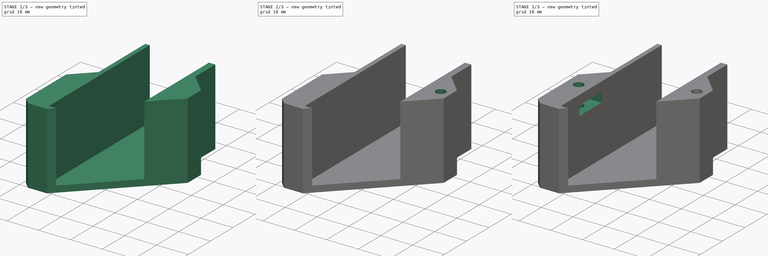
[diagram: build sequence overview — one tinted view per stage of 3, left to right]
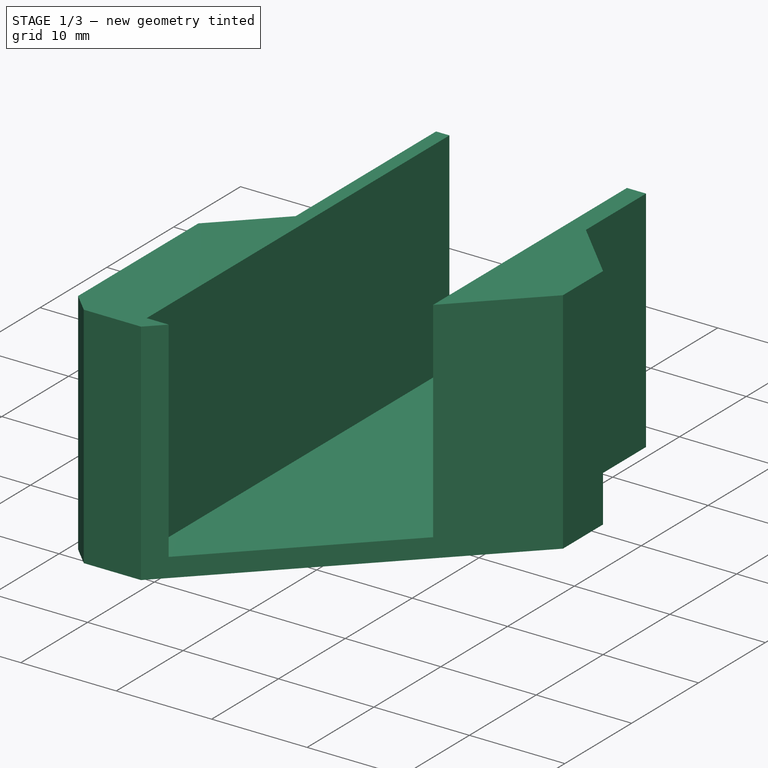
[diagram: stage 1 of 3 — iso view after this stage's code; geometry added in this stage tinted green]
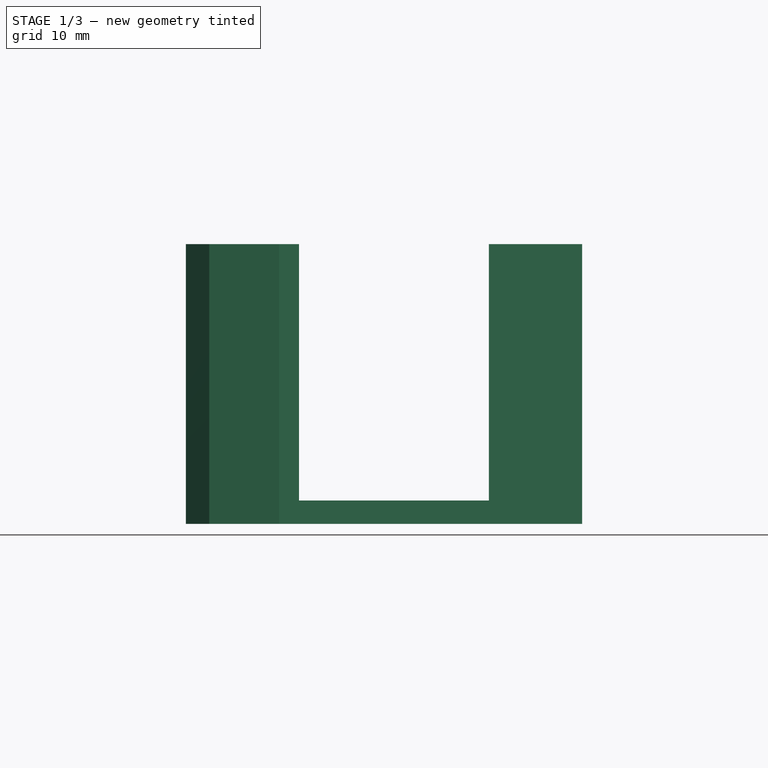
[diagram: stage 1 of 3 — front view after this stage's code; geometry added in this stage tinted green]
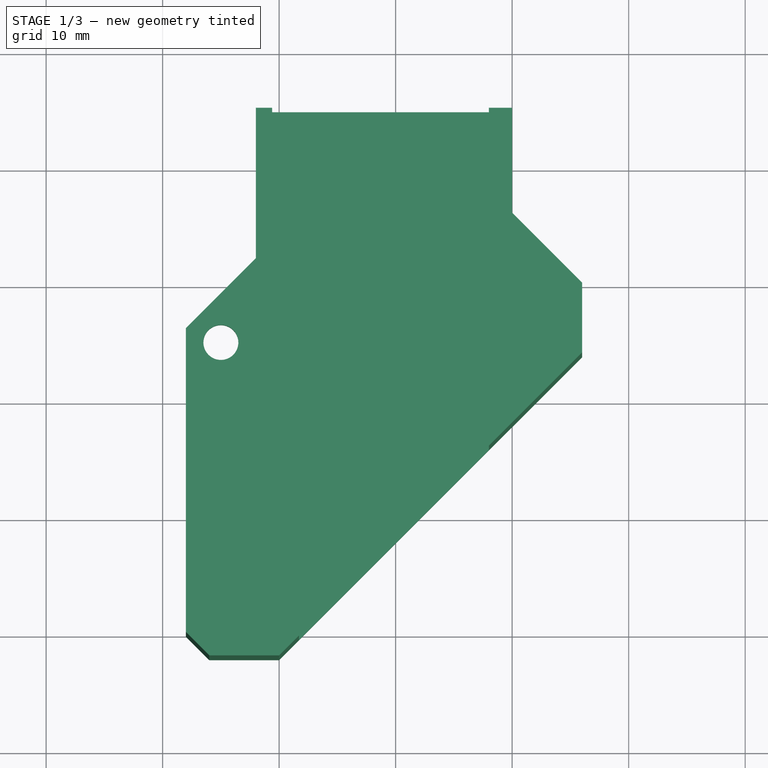
[diagram: stage 1 of 3 — top view after this stage's code; geometry added in this stage tinted green]
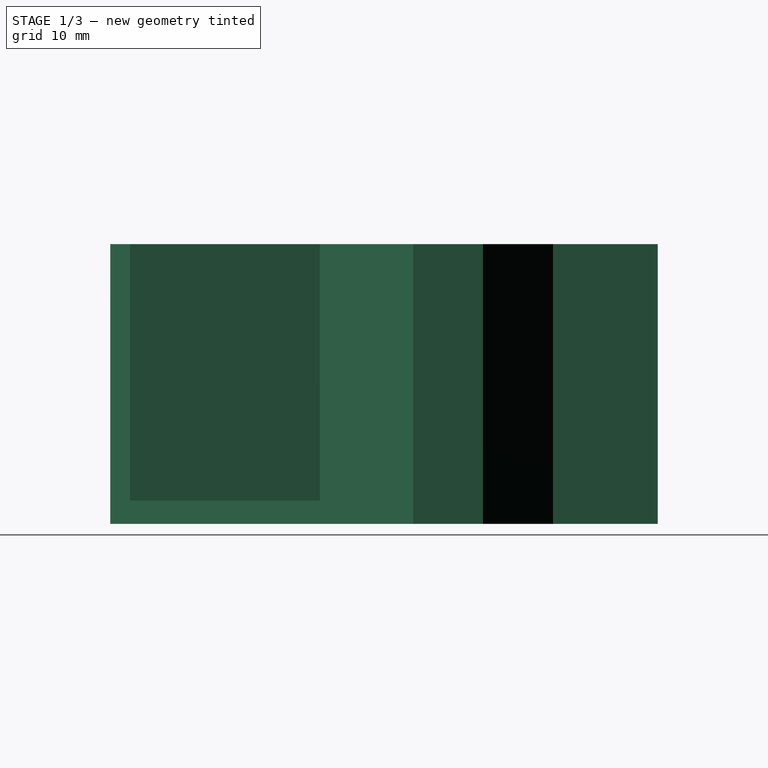
[diagram: stage 1 of 3 — right view after this stage's code; geometry added in this stage tinted green]
FCSTD DOCUMENT  (FreeCAD 0.20R)
Label: support fpm10a
License: All rights reserved
LicenseURL: http://en.wikipedia.org/wiki/All_rights_reserved
objects: Sketcher::SketchObject×5, PartDesign::Pocket×3, PartDesign::Pad×2, PartDesign::Body×1
note: 16 computed .brp shape members not serialized (recipe doc carries the construction recipe); baked Part::Feature solids carry a one-line shape summary decoded from their .brp

FEATURE [Sketcher::SketchObject] Sketch
  FullyConstrained = true
  MapMode = 5
  Support = -> [XY_Plane]
  sketch-geometry (30):
    g0: LineSegment StartX=0 StartY=45 StartZ=0 EndX=0 EndY=0 EndZ=0
    g1: LineSegment StartX=0 StartY=0 StartZ=0 EndX=2 EndY=0 EndZ=0
    g2: LineSegment StartX=2 StartY=0 StartZ=0 EndX=18 EndY=16 EndZ=0
    g3: LineSegment StartX=18 StartY=16 StartZ=0 EndX=18 EndY=45 EndZ=0
    g4: LineSegment StartX=18 StartY=45 StartZ=0 EndX=0 EndY=45 EndZ=0
    g5: LineSegment StartX=-2 StartY=45 StartZ=0 EndX=-2 EndY=24 EndZ=0
    g6: LineSegment StartX=-2 StartY=24 StartZ=0 EndX=-8 EndY=18 EndZ=0
    g7: LineSegment StartX=-6 StartY=-2 StartZ=0 EndX=0 EndY=-2 EndZ=0
    g8: LineSegment StartX=0 StartY=-2 StartZ=0 EndX=20 EndY=18 EndZ=0
    g9: LineSegment StartX=20 StartY=18 StartZ=0 EndX=20 EndY=45 EndZ=0
    g10: LineSegment StartX=20 StartY=45 StartZ=0 EndX=-2 EndY=45 EndZ=0
    g11: LineSegment StartX=-8 StartY=18 StartZ=0 EndX=0 EndY=-2 EndZ=0
    g12: LineSegment StartX=18 StartY=16 StartZ=0 EndX=-2 EndY=24 EndZ=0
    g13: LineSegment StartX=-6 StartY=-2 StartZ=0 EndX=-8 EndY=0 EndZ=0
    g14: LineSegment StartX=-8 StartY=0 StartZ=0 EndX=-8 EndY=18 EndZ=0
    g15: LineSegment StartX=-2 StartY=45 StartZ=0 EndX=-2 EndY=32.4853 EndZ=0
    g16: LineSegment StartX=-2 StartY=32.4853 StartZ=0 EndX=-8 EndY=26.4853 EndZ=0
    g17: LineSegment StartX=-8 StartY=26.4853 StartZ=0 EndX=-8 EndY=18 EndZ=0
    g18: Circle CenterX=-5 CenterY=25.2426 CenterZ=0 NormalX=0 NormalY=0 NormalZ=1 AngleXU=0 Radius=1.5
    g19: LineSegment StartX=-8 StartY=18 StartZ=0 EndX=-2 EndY=32.4853 EndZ=0
    g20: LineSegment StartX=-2 StartY=24 StartZ=0 EndX=-8 EndY=26.4853 EndZ=0
    g21: LineSegment StartX=20 StartY=18 StartZ=0 EndX=26 EndY=24 EndZ=0
    g22: LineSegment StartX=26 StartY=24 StartZ=0 EndX=26 EndY=30 EndZ=0
    g23: LineSegment StartX=26 StartY=30 StartZ=0 EndX=20 EndY=36 EndZ=0
    g24: LineSegment StartX=20 StartY=36 StartZ=0 EndX=20 EndY=45 EndZ=0
    g25: Circle CenterX=23 CenterY=27 CenterZ=0 NormalX=0 NormalY=0 NormalZ=1 AngleXU=0 Radius=1.5
    g26: LineSegment StartX=26 StartY=30 StartZ=0 EndX=23 EndY=27 EndZ=0
    g27: LineSegment StartX=23 StartY=27 StartZ=0 EndX=26 EndY=24 EndZ=0
    g28: LineSegment StartX=20 StartY=27 StartZ=0 EndX=23 EndY=27 EndZ=0
    g29: LineSegment StartX=23 StartY=27 StartZ=0 EndX=26 EndY=27 EndZ=0
  constraints (81):
    c: PointOnObject(g0,g-2)
    c: Coincident(g0,g-1)
    c: Coincident(g0,g1)
    c: PointOnObject(g1,g-1)
    c: Coincident(g1,g2)
    c: Coincident(g2,g3)
    c: Vertical(g3)
    c: Coincident(g3,g4)
    c: Coincident(g4,g0)
    c: Horizontal(g4)
    c: Distance(g1) = 2
    c: Distance(g4) = 18
    c: Angle(g2,g0) = 0.785398
    c: Distance(g0) = 45
    c: Vertical(g5)
    c: Coincident(g5,g6)
    c: Horizontal(g7)
    c: Coincident(g7,g8)
    c: Coincident(g8,g9)
    c: Vertical(g9)
    c: Coincident(g9,g10)
    c: Coincident(g10,g5)
    c: Horizontal(g10)
    c: PointOnObject(g1,g8)
    c: PointOnObject(g2,g8)
    c: Parallel(g6,g8)
    c: DistanceY(g7,g0) = 2
    c: PointOnObject(g0,g10)
    c: Distance(g5,g0) = 2
    c: Distance(g9,g3) = 2
    c: DistanceX(g6,g5) = 6
    c: Coincident(g11,g6)
    c: Coincident(g11,g7)
    c: Coincident(g12,g2)
    c: Coincident(g12,g5)
    c: Equal(g11,g12)
    c: Coincident(g7,g13)
    c: PointOnObject(g13,g-1)
    c: Coincident(g13,g14)
    c: Coincident(g14,g6)
    c: Vertical(g14)
    c: Perpendicular(g8,g13)
    c: Coincident(g10,g15)
    c: PointOnObject(g15,g5)
    c: Coincident(g15,g16)
    c: Coincident(g16,g17)
    c: Coincident(g17,g14)
    c: Vertical(g17)
    c: Parallel(g16,g6)
    c: Equal(g17,g16)
    c: Diameter(g18) = 3
    c: Coincident(g14,g19)
    c: Coincident(g19,g15)
    c: Coincident(g5,g20)
    c: Coincident(g20,g16)
    c: PointOnObject(g18,g20)
    c: PointOnObject(g18,g19)
    c: Coincident(g8,g21)
    c: Coincident(g21,g22)
    c: Vertical(g22)
    c: Coincident(g22,g23)
    c: PointOnObject(g23,g9)
    c: Coincident(g23,g24)
    c: Coincident(g24,g10)
    c: Parallel(g23,g13)
    c: Parallel(g21,g16)
    c: Diameter(g25) = 3
    c: Coincident(g22,g26)
    c: Coincident(g26,g25)
    c: Coincident(g26,g27)
    c: Coincident(g27,g21)
    c: Equal(g27,g26)
    c: DistanceX(g8,g21) = 6
    c: Angle(g27,g26) = 1.5708
    c: PointOnObject(g28,g9)
    c: Coincident(g28,g25)
    c: Horizontal(g28)
    c: Coincident(g28,g29)
    c: PointOnObject(g29,g22)
    c: Horizontal(g29)
    c: Equal(g29,g28)
FEATURE [PartDesign::Pad] Pad
  Direction = (0,0,1)
  Length = 2
  Length2 = 10
  Profile = -> Sketch
  ReferenceAxis = -> Sketch [N_Axis]
  Type = 0
FEATURE [Sketcher::SketchObject] Sketch001
  ExternalGeometry = -> [Pad]
  FullyConstrained = true
  MapMode = 5
  Placement = pos=(0,0,2) rot=(0,0,1;0rad)
  Support = -> [Pad]
  sketch-geometry (16):
    g0: LineSegment StartX=-2 StartY=32.4853 StartZ=0 EndX=-2 EndY=45 EndZ=0
    g1: LineSegment StartX=0 StartY=-2 StartZ=0 EndX=-6 EndY=-2 EndZ=0
    g2: LineSegment StartX=-6 StartY=-2 StartZ=0 EndX=-8 EndY=0 EndZ=0
    g3: LineSegment StartX=-8 StartY=0 StartZ=0 EndX=-8 EndY=18 EndZ=0
    g4: LineSegment StartX=-8 StartY=18 StartZ=0 EndX=-2 EndY=24 EndZ=0
    g5: LineSegment StartX=-2 StartY=24 StartZ=0 EndX=-2 EndY=32.4853 EndZ=0
    g6: LineSegment StartX=0 StartY=-2 StartZ=0 EndX=1.7 EndY=-0.3 EndZ=0
    g7: LineSegment StartX=1.7 StartY=-0.3 StartZ=0 EndX=-0.6 EndY=-0.3 EndZ=0
    g8: LineSegment StartX=-0.6 StartY=-0.3 StartZ=0 EndX=-0.6 EndY=45 EndZ=0
    g9: LineSegment StartX=-0.6 StartY=45 StartZ=0 EndX=-2 EndY=45 EndZ=0
    g10: LineSegment StartX=20 StartY=45 StartZ=0 EndX=18 EndY=45 EndZ=0
    g11: LineSegment StartX=18 StartY=45 StartZ=0 EndX=18 EndY=16 EndZ=0
    g12: LineSegment StartX=20 StartY=45 StartZ=0 EndX=20 EndY=36 EndZ=0
    g13: LineSegment StartX=20 StartY=36 StartZ=0 EndX=26 EndY=30 EndZ=0
    g14: LineSegment StartX=26 StartY=30 StartZ=0 EndX=26 EndY=24 EndZ=0
    g15: LineSegment StartX=26 StartY=24 StartZ=0 EndX=18 EndY=16 EndZ=0
  constraints (38):
    c: Coincident(g-6,g0)
    c: Coincident(g0,g-7)
    c: Coincident(g1,g-14)
    c: Coincident(g1,g2)
    c: Coincident(g2,g-14)
    c: Coincident(g2,g3)
    c: Coincident(g3,g-4)
    c: Coincident(g3,g4)
    c: Coincident(g4,g5)
    c: Coincident(g5,g0)
    c: Parallel(g4,g-5)
    c: Parallel(g5,g-4)
    c: Coincident(g1,g-13)
    c: Coincident(g1,g6)
    c: PointOnObject(g6,g-12)
    c: Coincident(g6,g7)
    c: Horizontal(g7)
    c: Coincident(g7,g8)
    c: PointOnObject(g8,g-7)
    c: Vertical(g8)
    c: Coincident(g8,g9)
    c: Coincident(g9,g0)
    c: DistanceX(g7,g-1) = 0.6
    c: DistanceY(g7,g-1) = 0.3
    c: PointOnObject(g10,g-7)
    c: Coincident(g10,g11)
    c: PointOnObject(g11,g-12)
    c: Vertical(g11)
    c: Distance(g10) = 2
    c: Coincident(g10,g12)
    c: Coincident(g12,g-9)
    c: Coincident(g12,g13)
    c: Coincident(g13,g-11)
    c: Coincident(g13,g14)
    c: Coincident(g14,g-11)
    c: Coincident(g14,g15)
    c: Coincident(g15,g11)
    c: Coincident(g10,g-8)
FEATURE [PartDesign::Pad] Pad001
  BaseFeature = -> Pad
  Direction = (0,0,1)
  Length = 22
  Length2 = 10
  Profile = -> Sketch001
  ReferenceAxis = -> Sketch001 [N_Axis]
  Type = 0
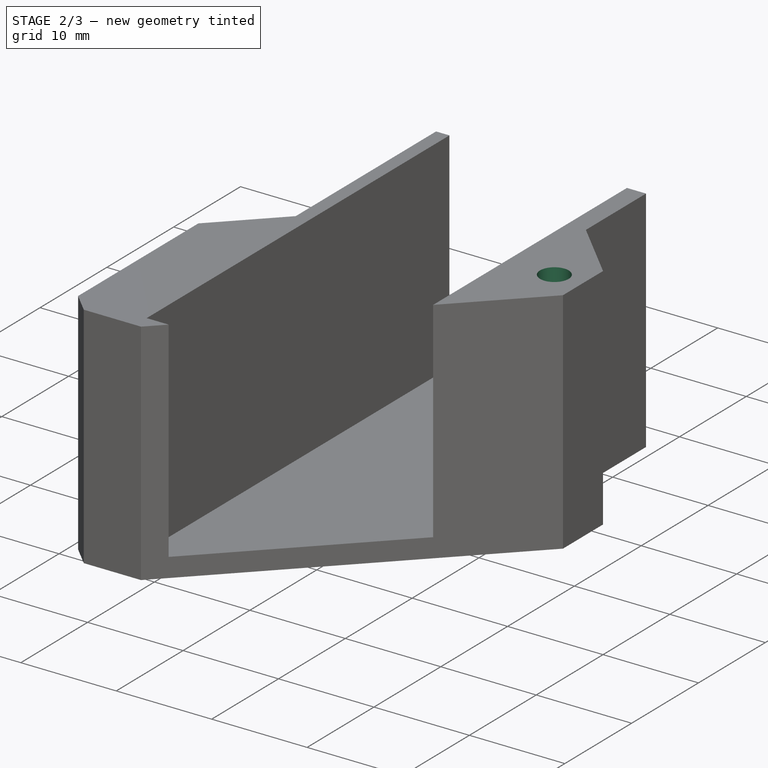
[diagram: stage 2 of 3 — iso view after this stage's code; geometry added in this stage tinted green]
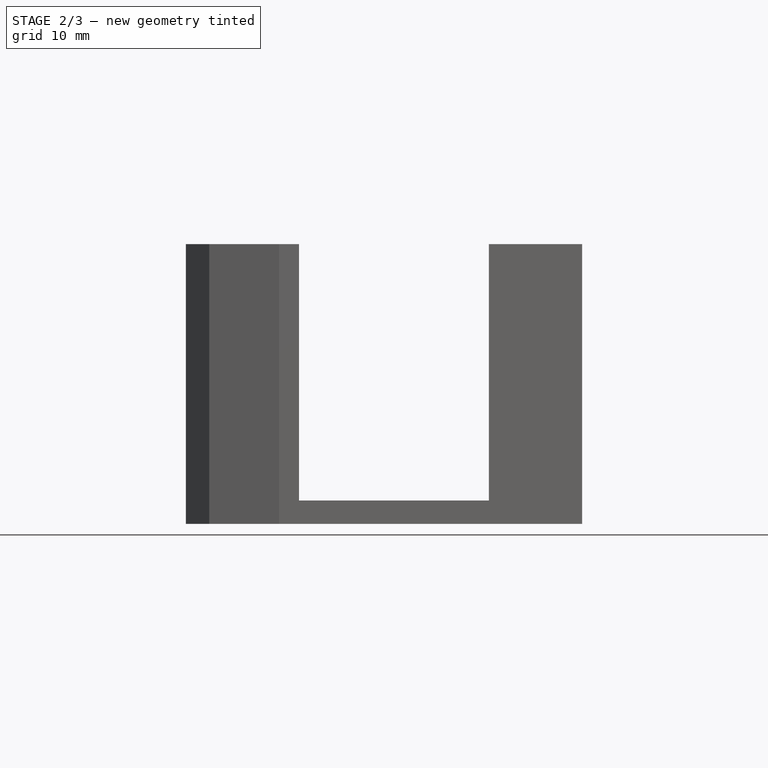
[diagram: stage 2 of 3 — front view after this stage's code; geometry added in this stage tinted green]
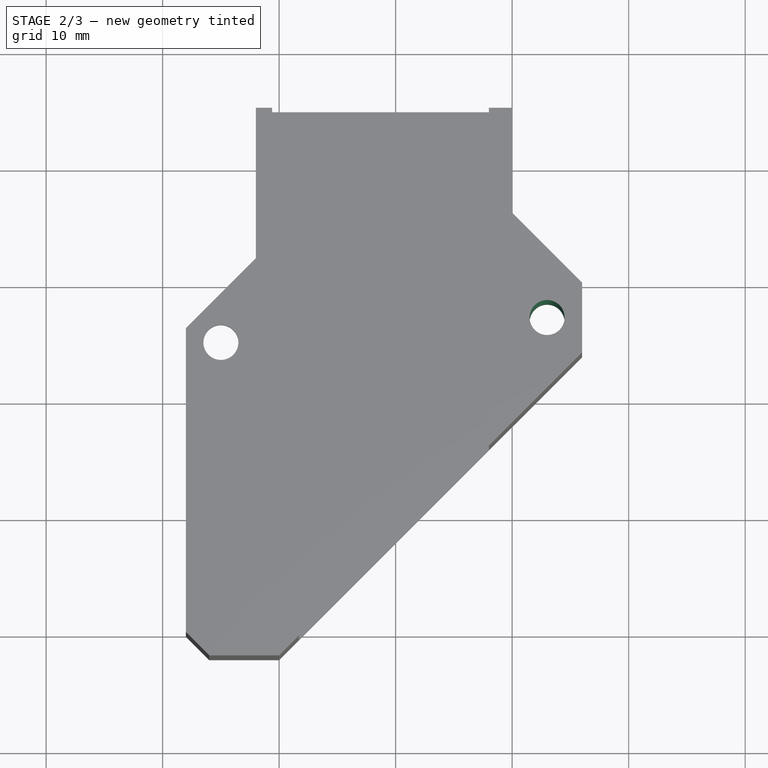
[diagram: stage 2 of 3 — top view after this stage's code; geometry added in this stage tinted green]
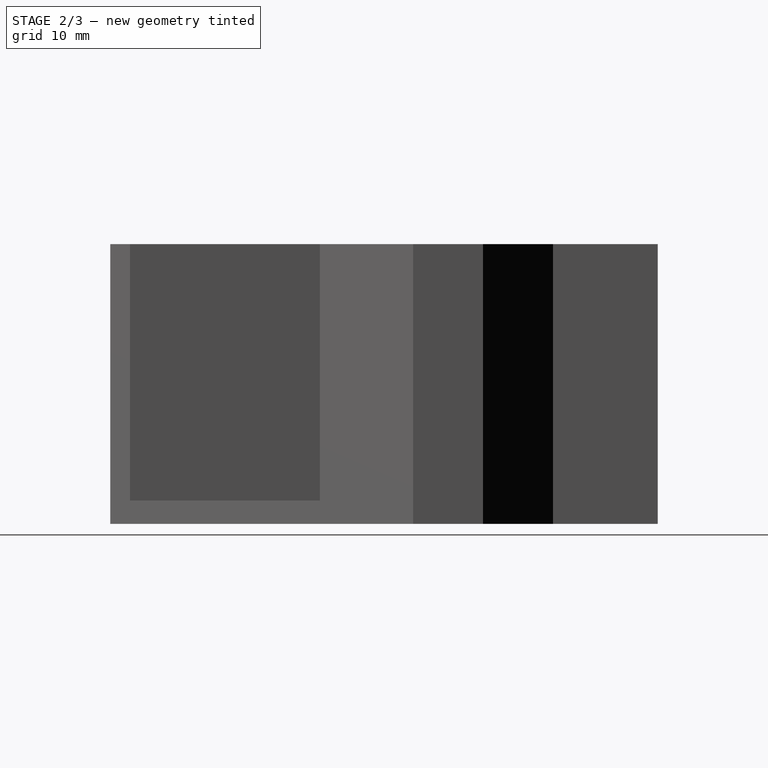
[diagram: stage 2 of 3 — right view after this stage's code; geometry added in this stage tinted green]
FEATURE [Sketcher::SketchObject] Sketch002
  ExternalGeometry = -> [Pad001]
  FullyConstrained = true
  MapMode = 5
  Placement = pos=(0,0,2) rot=(1,0,0;3.14159rad)
  Support = -> [Pad001]
  sketch-geometry (1):
    g0: Circle CenterX=23 CenterY=-27 CenterZ=0 NormalX=0 NormalY=0 NormalZ=1 AngleXU=0 Radius=1.5
  constraints (4):
    c: Coincident(g0,g-3)
    c: Tangent(g0,g-3)
    c: DistanceY(g0,g-4) = 1.75736
    c: DistanceX(g-4,g0) = 28
FEATURE [PartDesign::Pocket] Pocket
  BaseFeature = -> Pad001
  Direction = (0,0,1)
  Length = 32
  Length2 = 5
  Profile = -> Sketch002
  ReferenceAxis = -> Sketch002 [N_Axis]
  Type = 0
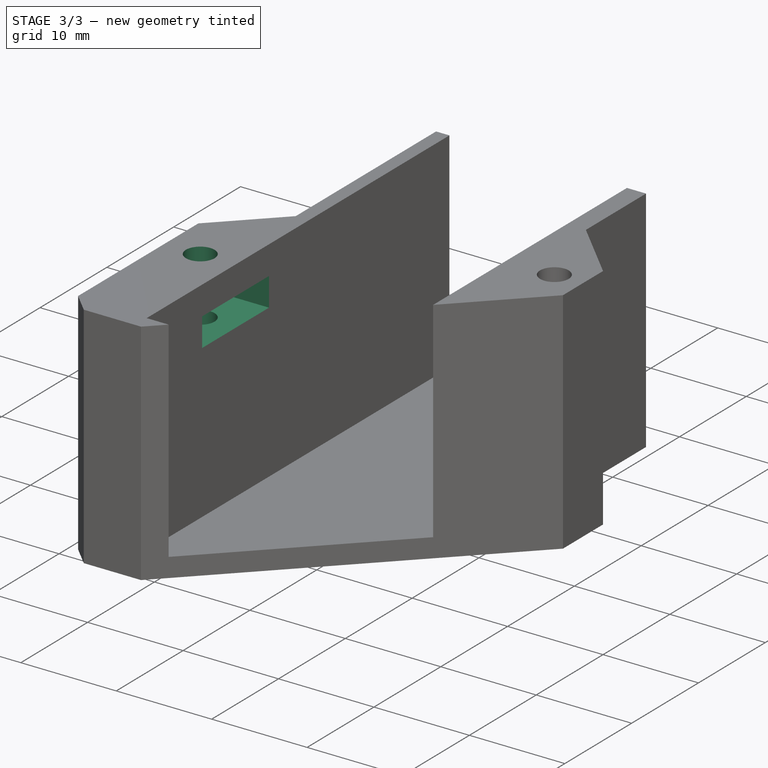
[diagram: stage 3 of 3 — iso view after this stage's code; geometry added in this stage tinted green]
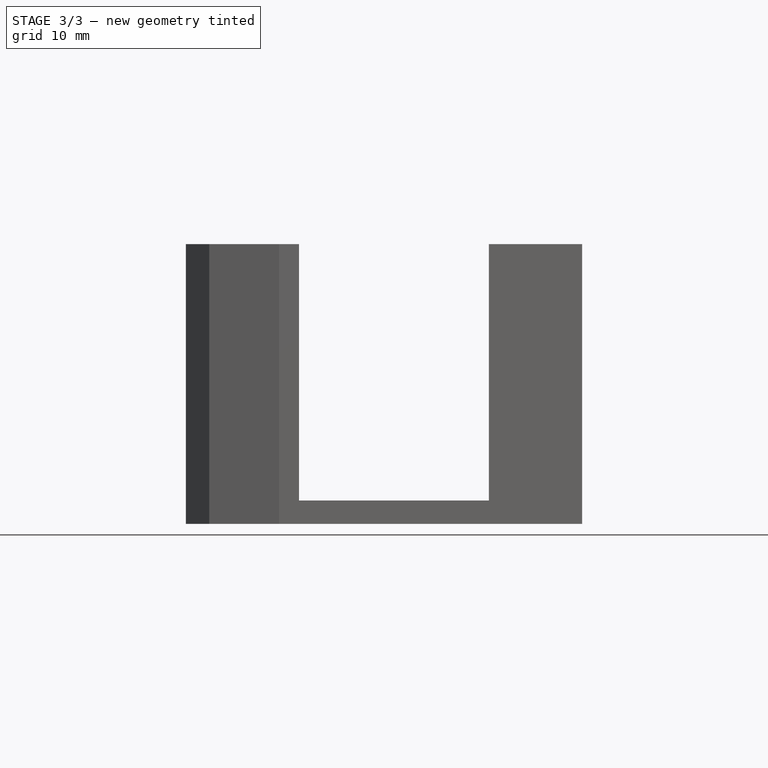
[diagram: stage 3 of 3 — front view after this stage's code; geometry added in this stage tinted green]
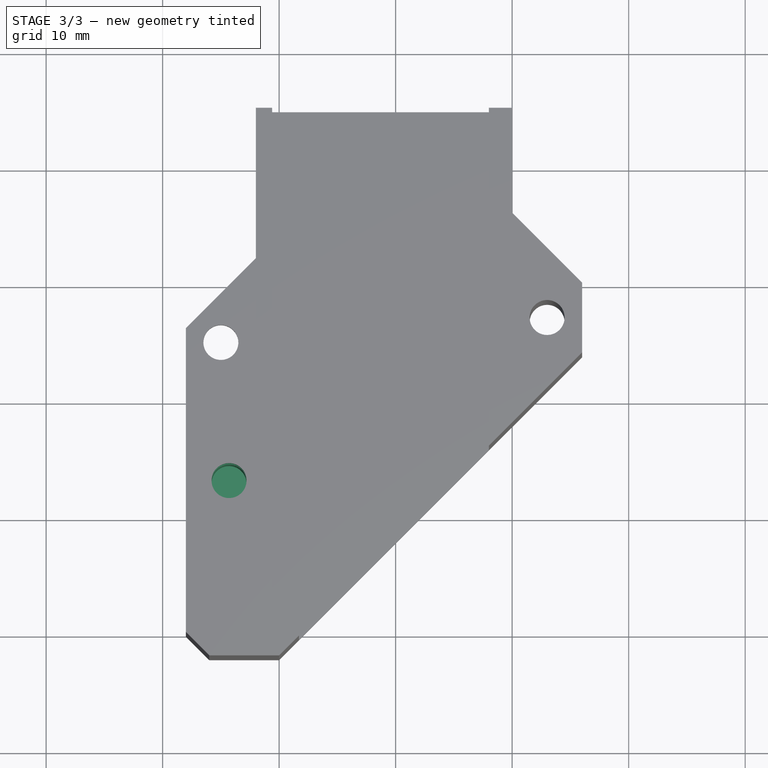
[diagram: stage 3 of 3 — top view after this stage's code; geometry added in this stage tinted green]
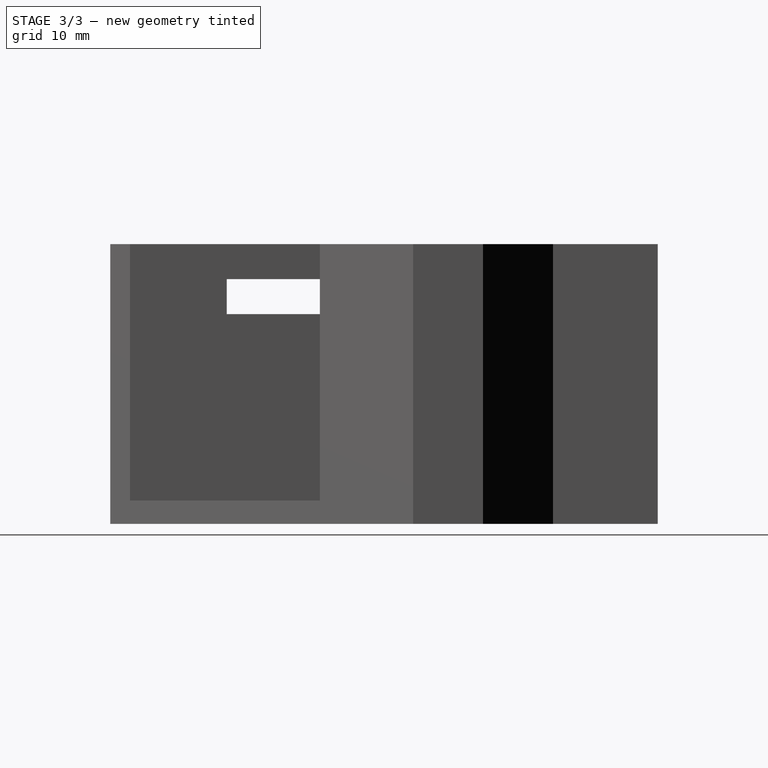
[diagram: stage 3 of 3 — right view after this stage's code; geometry added in this stage tinted green]
FEATURE [Sketcher::SketchObject] Sketch003
  ExternalGeometry = -> [Pocket]
  FullyConstrained = true
  MapMode = 5
  Placement = pos=(0,0,24) rot=(0,0,1;0rad)
  Support = -> [Pocket]
  sketch-geometry (3):
    g0: Circle CenterX=-4.3 CenterY=13 CenterZ=0 NormalX=0 NormalY=0 NormalZ=1 AngleXU=0 Radius=1.5
    g1: LineSegment StartX=-8 StartY=0 StartZ=0 EndX=-4.3 EndY=13 EndZ=0
    g2: LineSegment StartX=-4.3 StartY=13 StartZ=0 EndX=-0.6 EndY=0 EndZ=0
  constraints (8):
    c: Diameter(g0) = 3
    c: Coincident(g1,g-7)
    c: Coincident(g1,g0)
    c: Coincident(g2,g0)
    c: PointOnObject(g2,g-5)
    c: PointOnObject(g2,g-1)
    c: Equal(g1,g2)
    c: DistanceY(g0,g-4) = 5
FEATURE [PartDesign::Pocket] Pocket001
  BaseFeature = -> Pocket
  Direction = (0,0,-1)
  Length = 15
  Length2 = 5
  Profile = -> Sketch003
  ReferenceAxis = -> Sketch003 [N_Axis]
  Type = 0
FEATURE [Sketcher::SketchObject] Sketch004
  ExternalGeometry = -> [Pocket001]
  FullyConstrained = true
  MapMode = 5
  Placement = pos=(-8,0,0) rot=(0.57735,-0.57735,-0.57735;2.0944rad)
  Support = -> [Pocket001]
  sketch-geometry (6):
    g0: LineSegment StartX=-18 StartY=21 StartZ=0 EndX=-8 EndY=21 EndZ=0
    g1: LineSegment StartX=-8 StartY=21 StartZ=0 EndX=-8 EndY=18 EndZ=0
    g2: LineSegment StartX=-8 StartY=18 StartZ=0 EndX=-18 EndY=18 EndZ=0
    g3: LineSegment StartX=-18 StartY=18 StartZ=0 EndX=-18 EndY=21 EndZ=0
    g4: LineSegment StartX=-18 StartY=21 StartZ=0 EndX=-14.5 EndY=24 EndZ=0
    g5: LineSegment StartX=-11.5 StartY=24 StartZ=0 EndX=-8 EndY=21 EndZ=0
  constraints (16):
    c: Coincident(g0,g1)
    c: Coincident(g1,g2)
    c: Coincident(g2,g3)
    c: Coincident(g3,g0)
    c: Horizontal(g0)
    c: Horizontal(g2)
    c: Vertical(g1)
    c: Vertical(g3)
    c: Distance(g3) = 3
    c: Coincident(g4,g0)
    c: Coincident(g4,g-3)
    c: Coincident(g5,g-3)
    c: Coincident(g5,g0)
    c: Equal(g5,g4)
    c: Vertical(g-5,g0)
    c: Distance(g-5,g0) = 3
FEATURE [PartDesign::Pocket] Pocket002
  BaseFeature = -> Pocket001
  Direction = (1,0,0)
  Length = 8
  Length2 = 5
  Profile = -> Sketch004
  ReferenceAxis = -> Sketch004 [N_Axis]
  Type = 0
FEATURE [PartDesign::Body] Body
  Group = -> [Sketch,Pad,Sketch001,Pad001,Sketch002,Pocket,Sketch003,Pocket001,Sketch004,Pocket002]
  Origin = -> Origin
  Tip = -> Pocket002
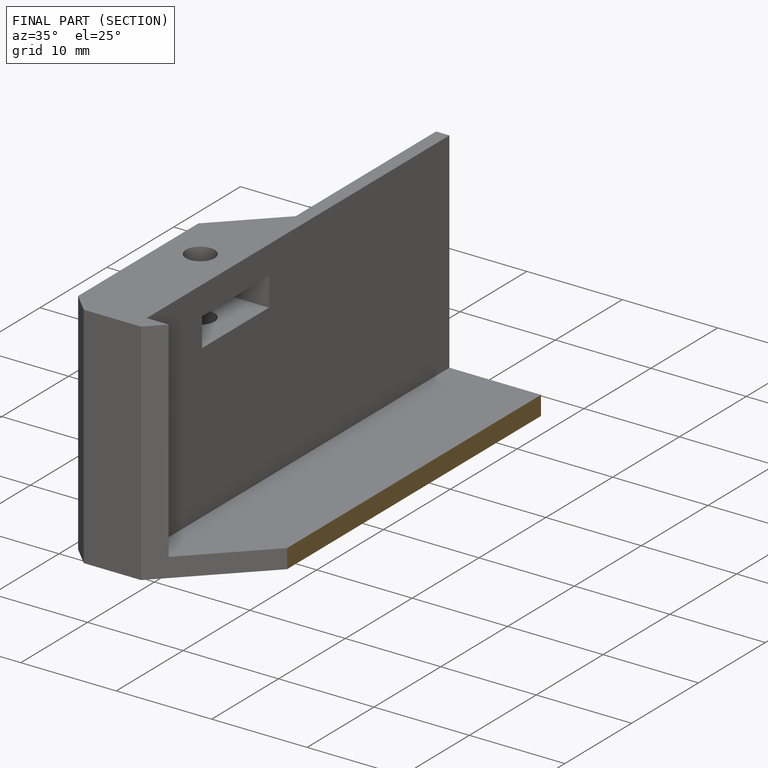
[diagram: finished part — half-section view (interior)]
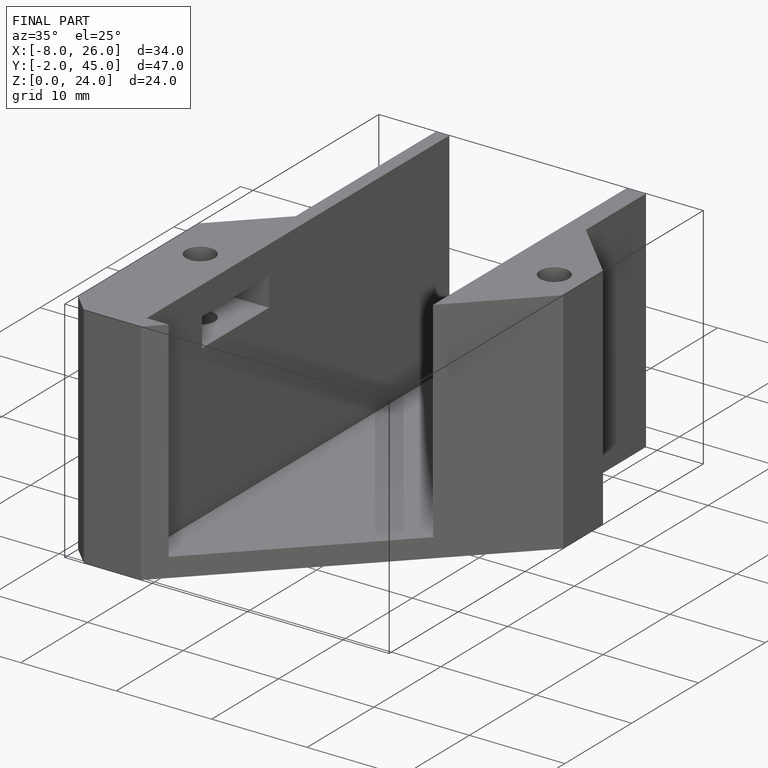
[diagram: finished part — iso view with bounding-box wireframe]
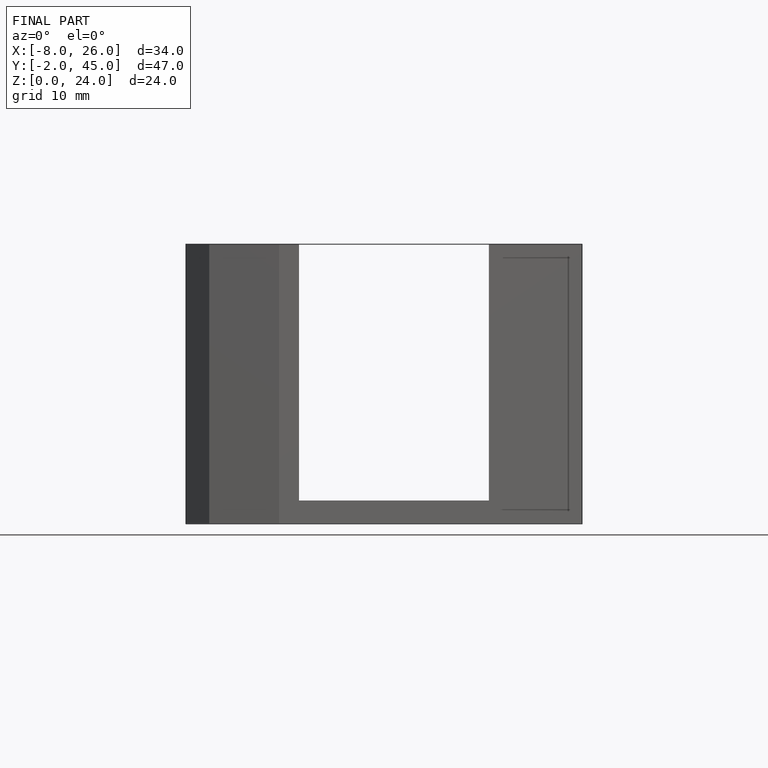
[diagram: finished part — front view with bounding-box wireframe]
